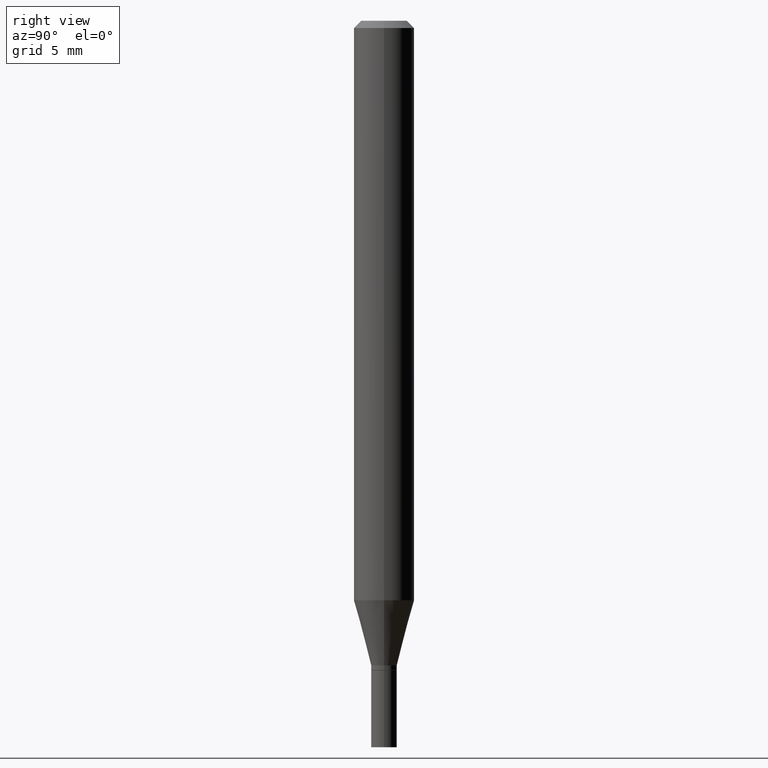
[diagram: clean part render]
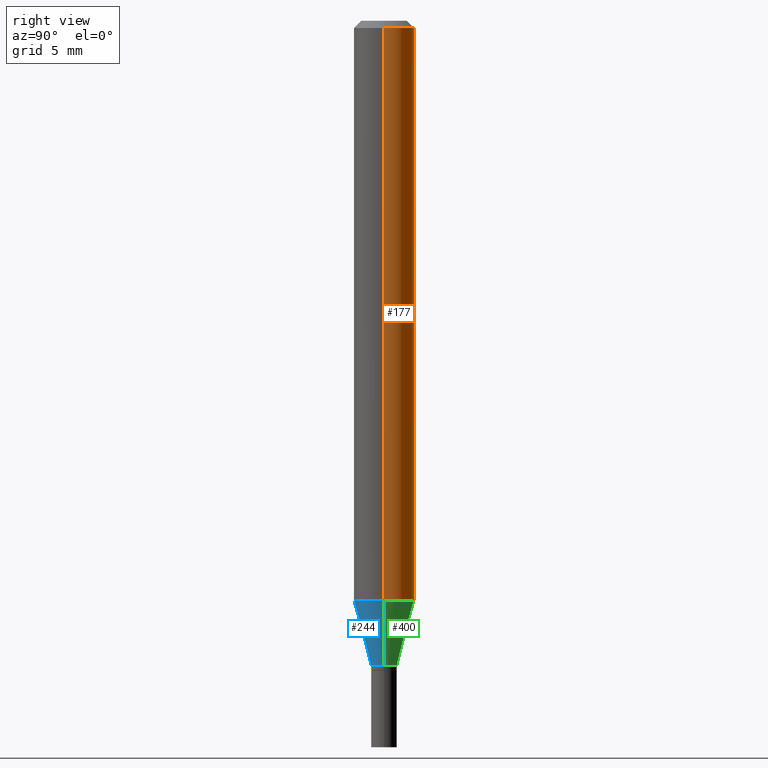
[diagram: same view with three faces highlighted in distinct colors, each labeled with its STEP entity id]
A machine part, right view with three faces highlighted in distinct colors.
Their STEP definitions:

[orange] entity #177 — the highlighted cylindrical surface (edge-blend (fillet) strip) has radius 1.5875 mm, axis along (-0, 0, 1).
#8 = CARTESIAN_POINT ( 'NONE',  ( 0.06250000000000000000, -4.614502942346933576E-15, -1.196646170927520458 ) ) ;
#19 = FACE_OUTER_BOUND ( 'NONE', #152, .T. ) ;
#32 = VERTEX_POINT ( 'NONE', #185 ) ;
#37 = AXIS2_PLACEMENT_3D ( 'NONE', #98, #159, #427 ) ;
#38 = ORIENTED_EDGE ( 'NONE', *, *, #266, .F. ) ;
#49 = EDGE_CURVE ( 'NONE', #425, #32, #404, .T. ) ;
#58 = ORIENTED_EDGE ( 'NONE', *, *, #380, .T. ) ;
#60 = DIRECTION ( 'NONE',  ( 1.000000000000000000, -6.982962677686266711E-15, 4.876176775795935793E-29 ) ) ;
#68 = ORIENTED_EDGE ( 'NONE', *, *, #49, .F. ) ;
#69 = VERTEX_POINT ( 'NONE', #436 ) ;
#93 = ORIENTED_EDGE ( 'NONE', *, *, #417, .T. ) ;
#96 = CIRCLE ( 'NONE', #383, 0.06250000000000000000 ) ;
#97 = DIRECTION ( 'NONE',  ( -2.445468806185136597E-29, 3.491481338843145583E-15, 1.000000000000000000 ) ) ;
#98 = CARTESIAN_POINT ( 'NONE',  ( 3.668203209277705088E-31, -5.237222008264718399E-17, -0.01499999999999999944 ) ) ;
#103 = DIRECTION ( 'NONE',  ( -2.445468806185136877E-29, 3.491481338843145188E-15, 1.000000000000000000 ) ) ;
#112 = DIRECTION ( 'NONE',  ( -2.445468806185136597E-29, 3.491481338843145583E-15, 1.000000000000000000 ) ) ;
#124 = CARTESIAN_POINT ( 'NONE',  ( 0.000000000000000000, 0.000000000000000000, 0.000000000000000000 ) ) ;
#148 = CARTESIAN_POINT ( 'NONE',  ( 0.06250000000000000000, -4.364351673553916694E-16, 3.047610484872459871E-30 ) ) ;
#152 = EDGE_LOOP ( 'NONE', ( #93, #58, #38, #68 ) ) ;
#159 = DIRECTION ( 'NONE',  ( -2.445468806185136597E-29, 3.491481338843145583E-15, 1.000000000000000000 ) ) ;
#168 = LINE ( 'NONE', #418, #271 ) ;
#177 = ADVANCED_FACE ( 'NONE', ( #19 ), #240, .T. ) ;
#185 = CARTESIAN_POINT ( 'NONE',  ( 0.06250000000000000000, -4.888073874380388472E-16, -0.01499999999999999944 ) ) ;
#240 = CYLINDRICAL_SURFACE ( 'NONE', #321, 0.06250000000000000000 ) ;
#245 = VERTEX_POINT ( 'NONE', #351 ) ;
#266 = EDGE_CURVE ( 'NONE', #32, #245, #334, .T. ) ;
#271 = VECTOR ( 'NONE', #103, 39.37007874015748143 ) ;
#296 = DIRECTION ( 'NONE',  ( -2.445468806185136877E-29, 3.491481338843145188E-15, 1.000000000000000000 ) ) ;
#321 = AXIS2_PLACEMENT_3D ( 'NONE', #124, #97, #60 ) ;
#331 = DIRECTION ( 'NONE',  ( 1.000000000000000000, -6.982962677686270655E-15, 0.000000000000000000 ) ) ;
#334 = CIRCLE ( 'NONE', #37, 0.06250000000000000000 ) ;
#351 = CARTESIAN_POINT ( 'NONE',  ( -0.06250000000000000000, -1.671130787687032468E-15, -0.01499999999999999944 ) ) ;
#380 = EDGE_CURVE ( 'NONE', #69, #245, #168, .T. ) ;
#383 = AXIS2_PLACEMENT_3D ( 'NONE', #439, #112, #331 ) ;
#404 = LINE ( 'NONE', #148, #437 ) ;
#417 = EDGE_CURVE ( 'NONE', #425, #69, #96, .T. ) ;
#418 = CARTESIAN_POINT ( 'NONE',  ( -0.06250000000000000000, 4.440892098500626162E-16, -3.074334431409316114E-30 ) ) ;
#425 = VERTEX_POINT ( 'NONE', #8 ) ;
#427 = DIRECTION ( 'NONE',  ( 1.000000000000000000, -6.982962677686266711E-15, 0.000000000000000000 ) ) ;
#436 = CARTESIAN_POINT ( 'NONE',  ( -0.06250000000000000000, -3.733978565141479290E-15, -1.196646170927520458 ) ) ;
#437 = VECTOR ( 'NONE', #296, 39.37007874015748143 ) ;
#439 = CARTESIAN_POINT ( 'NONE',  ( 2.926360883044138788E-29, -4.178067774991542695E-15, -1.196646170927520458 ) ) ;

[blue] entity #244 — the highlighted conical surface has half-angle 15 deg.
#2 = CARTESIAN_POINT ( 'NONE',  ( 0.02649999999999992639, -4.832210172958911994E-15, -1.331000000000000183 ) ) ;
#8 = CARTESIAN_POINT ( 'NONE',  ( 0.06250000000000000000, -4.614502942346933576E-15, -1.196646170927520458 ) ) ;
#16 = ORIENTED_EDGE ( 'NONE', *, *, #114, .F. ) ;
#26 = DIRECTION ( 'NONE',  ( -2.445468806185136597E-29, 3.491481338843145583E-15, 1.000000000000000000 ) ) ;
#27 = CARTESIAN_POINT ( 'NONE',  ( -0.02649999999999992639, -4.096423201082640425E-15, -1.331000000000000183 ) ) ;
#30 = CARTESIAN_POINT ( 'NONE',  ( 3.254918981032417030E-29, -4.647161662000227094E-15, -1.331000000000000183 ) ) ;
#46 = ORIENTED_EDGE ( 'NONE', *, *, #129, .T. ) ;
#67 = CARTESIAN_POINT ( 'NONE',  ( 2.926360883044138788E-29, -4.178067774991542695E-15, -1.196646170927520458 ) ) ;
#69 = VERTEX_POINT ( 'NONE', #436 ) ;
#90 = AXIS2_PLACEMENT_3D ( 'NONE', #30, #391, #166 ) ;
#114 = EDGE_CURVE ( 'NONE', #203, #69, #150, .T. ) ;
#121 = CARTESIAN_POINT ( 'NONE',  ( -0.02649999999999992639, -4.458867837023800771E-15, -1.331000000000000183 ) ) ;
#129 = EDGE_CURVE ( 'NONE', #396, #425, #146, .T. ) ;
#146 = LINE ( 'NONE', #292, #208 ) ;
#150 = LINE ( 'NONE', #121, #443 ) ;
#166 = DIRECTION ( 'NONE',  ( 1.000000000000000000, -6.982962677686260400E-15, 0.000000000000000000 ) ) ;
#179 = DIRECTION ( 'NONE',  ( 1.000000000000000000, -6.982962677686260400E-15, 0.000000000000000000 ) ) ;
#202 = DIRECTION ( 'NONE',  ( 1.000000000000000000, -6.982962677686270655E-15, 0.000000000000000000 ) ) ;
#203 = VERTEX_POINT ( 'NONE', #27 ) ;
#208 = VECTOR ( 'NONE', #415, 39.37007874015748854 ) ;
#213 = DIRECTION ( 'NONE',  ( -2.445468806185136597E-29, 3.491481338843145583E-15, 1.000000000000000000 ) ) ;
#221 = DIRECTION ( 'NONE',  ( -0.2588190451025211836, 5.211531920934547886E-15, 0.9659258262890679791 ) ) ;
#244 = ADVANCED_FACE ( 'NONE', ( #278 ), #405, .T. ) ;
#267 = CIRCLE ( 'NONE', #341, 0.06250000000000000000 ) ;
#269 = EDGE_CURVE ( 'NONE', #69, #425, #267, .T. ) ;
#278 = FACE_OUTER_BOUND ( 'NONE', #450, .T. ) ;
#284 = ORIENTED_EDGE ( 'NONE', *, *, #269, .F. ) ;
#292 = CARTESIAN_POINT ( 'NONE',  ( 0.02649999999999992639, -4.832210172958911994E-15, -1.331000000000000183 ) ) ;
#341 = AXIS2_PLACEMENT_3D ( 'NONE', #67, #26, #202 ) ;
#362 = ORIENTED_EDGE ( 'NONE', *, *, #410, .T. ) ;
#391 = DIRECTION ( 'NONE',  ( -2.445468806185136597E-29, 3.491481338843145583E-15, 1.000000000000000000 ) ) ;
#394 = CIRCLE ( 'NONE', #431, 0.02649999999999992639 ) ;
#396 = VERTEX_POINT ( 'NONE', #2 ) ;
#405 = CONICAL_SURFACE ( 'NONE', #90, 0.02649999999999992639, 0.2617993877991499074 ) ;
#410 = EDGE_CURVE ( 'NONE', #203, #396, #394, .T. ) ;
#415 = DIRECTION ( 'NONE',  ( 0.2588190451025211836, 1.565188264969622559E-15, 0.9659258262890679791 ) ) ;
#425 = VERTEX_POINT ( 'NONE', #8 ) ;
#431 = AXIS2_PLACEMENT_3D ( 'NONE', #435, #213, #179 ) ;
#435 = CARTESIAN_POINT ( 'NONE',  ( 3.254918981032417030E-29, -4.647161662000227094E-15, -1.331000000000000183 ) ) ;
#436 = CARTESIAN_POINT ( 'NONE',  ( -0.06250000000000000000, -3.733978565141479290E-15, -1.196646170927520458 ) ) ;
#443 = VECTOR ( 'NONE', #221, 39.37007874015748854 ) ;
#450 = EDGE_LOOP ( 'NONE', ( #16, #362, #46, #284 ) ) ;

[green] entity #400 — the highlighted conical surface has half-angle 15 deg.
#2 = CARTESIAN_POINT ( 'NONE',  ( 0.02649999999999992639, -4.832210172958911994E-15, -1.331000000000000183 ) ) ;
#5 = FACE_OUTER_BOUND ( 'NONE', #53, .T. ) ;
#8 = CARTESIAN_POINT ( 'NONE',  ( 0.06250000000000000000, -4.614502942346933576E-15, -1.196646170927520458 ) ) ;
#11 = AXIS2_PLACEMENT_3D ( 'NONE', #172, #387, #133 ) ;
#23 = CIRCLE ( 'NONE', #11, 0.02649999999999992639 ) ;
#27 = CARTESIAN_POINT ( 'NONE',  ( -0.02649999999999992639, -4.096423201082640425E-15, -1.331000000000000183 ) ) ;
#53 = EDGE_LOOP ( 'NONE', ( #132, #264, #339, #407 ) ) ;
#69 = VERTEX_POINT ( 'NONE', #436 ) ;
#75 = CARTESIAN_POINT ( 'NONE',  ( 3.254918981032417030E-29, -4.647161662000227094E-15, -1.331000000000000183 ) ) ;
#96 = CIRCLE ( 'NONE', #383, 0.06250000000000000000 ) ;
#112 = DIRECTION ( 'NONE',  ( -2.445468806185136597E-29, 3.491481338843145583E-15, 1.000000000000000000 ) ) ;
#114 = EDGE_CURVE ( 'NONE', #203, #69, #150, .T. ) ;
#121 = CARTESIAN_POINT ( 'NONE',  ( -0.02649999999999992639, -4.458867837023800771E-15, -1.331000000000000183 ) ) ;
#125 = AXIS2_PLACEMENT_3D ( 'NONE', #75, #287, #291 ) ;
#129 = EDGE_CURVE ( 'NONE', #396, #425, #146, .T. ) ;
#132 = ORIENTED_EDGE ( 'NONE', *, *, #228, .T. ) ;
#133 = DIRECTION ( 'NONE',  ( 1.000000000000000000, -6.982962677686260400E-15, 0.000000000000000000 ) ) ;
#146 = LINE ( 'NONE', #292, #208 ) ;
#150 = LINE ( 'NONE', #121, #443 ) ;
#172 = CARTESIAN_POINT ( 'NONE',  ( 3.254918981032417030E-29, -4.647161662000227094E-15, -1.331000000000000183 ) ) ;
#203 = VERTEX_POINT ( 'NONE', #27 ) ;
#208 = VECTOR ( 'NONE', #415, 39.37007874015748854 ) ;
#221 = DIRECTION ( 'NONE',  ( -0.2588190451025211836, 5.211531920934547886E-15, 0.9659258262890679791 ) ) ;
#228 = EDGE_CURVE ( 'NONE', #396, #203, #23, .T. ) ;
#264 = ORIENTED_EDGE ( 'NONE', *, *, #114, .T. ) ;
#287 = DIRECTION ( 'NONE',  ( -2.445468806185136597E-29, 3.491481338843145583E-15, 1.000000000000000000 ) ) ;
#291 = DIRECTION ( 'NONE',  ( 1.000000000000000000, -6.982962677686260400E-15, 0.000000000000000000 ) ) ;
#292 = CARTESIAN_POINT ( 'NONE',  ( 0.02649999999999992639, -4.832210172958911994E-15, -1.331000000000000183 ) ) ;
#331 = DIRECTION ( 'NONE',  ( 1.000000000000000000, -6.982962677686270655E-15, 0.000000000000000000 ) ) ;
#339 = ORIENTED_EDGE ( 'NONE', *, *, #417, .F. ) ;
#383 = AXIS2_PLACEMENT_3D ( 'NONE', #439, #112, #331 ) ;
#387 = DIRECTION ( 'NONE',  ( -2.445468806185136597E-29, 3.491481338843145583E-15, 1.000000000000000000 ) ) ;
#396 = VERTEX_POINT ( 'NONE', #2 ) ;
#400 = ADVANCED_FACE ( 'NONE', ( #5 ), #414, .T. ) ;
#407 = ORIENTED_EDGE ( 'NONE', *, *, #129, .F. ) ;
#414 = CONICAL_SURFACE ( 'NONE', #125, 0.02649999999999992639, 0.2617993877991499074 ) ;
#415 = DIRECTION ( 'NONE',  ( 0.2588190451025211836, 1.565188264969622559E-15, 0.9659258262890679791 ) ) ;
#417 = EDGE_CURVE ( 'NONE', #425, #69, #96, .T. ) ;
#425 = VERTEX_POINT ( 'NONE', #8 ) ;
#436 = CARTESIAN_POINT ( 'NONE',  ( -0.06250000000000000000, -3.733978565141479290E-15, -1.196646170927520458 ) ) ;
#439 = CARTESIAN_POINT ( 'NONE',  ( 2.926360883044138788E-29, -4.178067774991542695E-15, -1.196646170927520458 ) ) ;
#443 = VECTOR ( 'NONE', #221, 39.37007874015748854 ) ;